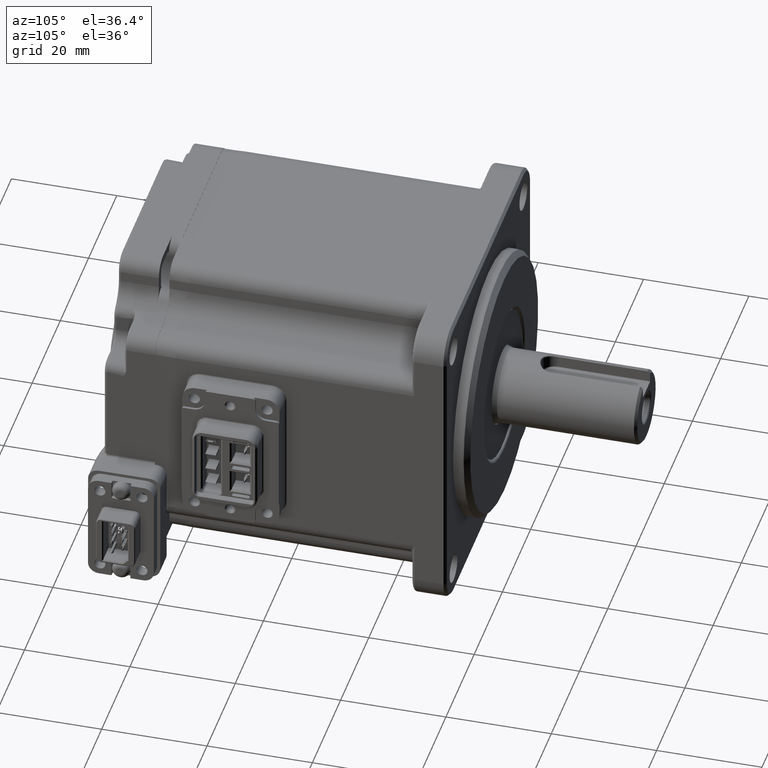
[diagram: clean part render]
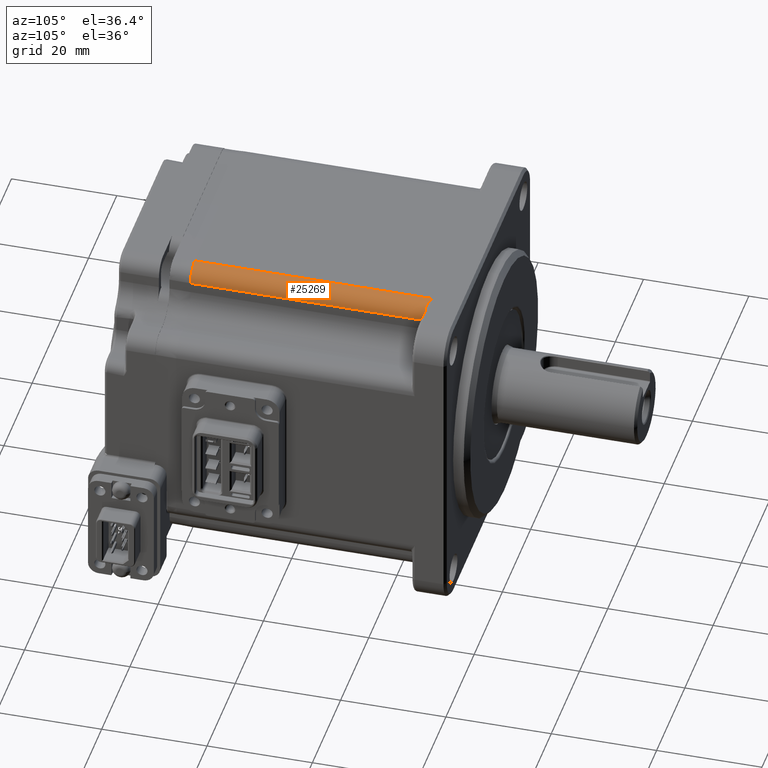
[diagram: same view with one face highlighted and labeled with its STEP entity id]
A machine part, auxiliary view. The second image highlights one B-rep face of the part: STEP entity #25269.
In plain terms, the highlighted cylindrical surface (edge-blend (fillet) strip) has radius 3 mm, axis along (-0, 1, -0).
Its self-contained STEP definition (entity closure, byte-faithful):
#1031 = AXIS2_PLACEMENT_3D ( 'NONE', #10527, #23548, #12647 ) ;
#1887 = LINE ( 'NONE', #19435, #25401 ) ;
#2039 = B_SPLINE_CURVE_WITH_KNOTS ( 'NONE', 3,
 ( #3037, #4738, #6856, #13925, #16039, #18045, #7276, #26395 ),
 .UNSPECIFIED., .F., .F.,
 ( 4, 2, 2, 4 ),
 ( 0.000000000000000000, 0.0005735661121465349685, 0.001147132224293069937, 0.002294264448586152017 ),
 .UNSPECIFIED. ) ;
#3037 = CARTESIAN_POINT ( 'NONE',  ( 18.95824174804891626, 5.200000000000001954, 29.27272727272727337 ) ) ;
#3210 = CARTESIAN_POINT ( 'NONE',  ( 16.99999999999997868, 6.000000000000000000, 30.00000000000000000 ) ) ;
#4129 = EDGE_CURVE ( 'NONE', #7677, #6767, #23454, .T. ) ;
#4738 = CARTESIAN_POINT ( 'NONE',  ( 18.81105337855161608, 5.199999999999998401, 29.39954865311708687 ) ) ;
#5053 = VERTEX_POINT ( 'NONE', #24340 ) ;
#6165 = ORIENTED_EDGE ( 'NONE', *, *, #26371, .T. ) ;
#6767 = VERTEX_POINT ( 'NONE', #13367 ) ;
#6856 = CARTESIAN_POINT ( 'NONE',  ( 18.65709914489520926, 5.234311899504082710, 29.50773729789409217 ) ) ;
#7276 = CARTESIAN_POINT ( 'NONE',  ( 17.33623105009467835, 5.817897131654720333, 30.00000000000000000 ) ) ;
#7677 = VERTEX_POINT ( 'NONE', #12406 ) ;
#8511 = LINE ( 'NONE', #19530, #13787 ) ;
#8609 = EDGE_LOOP ( 'NONE', ( #9058, #6165, #22020, #27765, #19655 ) ) ;
#9058 = ORIENTED_EDGE ( 'NONE', *, *, #22910, .T. ) ;
#10527 = CARTESIAN_POINT ( 'NONE',  ( 17.00000000000000000, 5.200000000000002842, 27.00000000000000355 ) ) ;
#10956 = VERTEX_POINT ( 'NONE', #20638 ) ;
#11071 = AXIS2_PLACEMENT_3D ( 'NONE', #11936, #22438, #26811 ) ;
#11517 = CYLINDRICAL_SURFACE ( 'NONE', #11071, 2.999999999999999112 ) ;
#11936 = CARTESIAN_POINT ( 'NONE',  ( 17.00000000000000000, -39.20000000000000284, 27.00000000000000355 ) ) ;
#12406 = CARTESIAN_POINT ( 'NONE',  ( 20.00000000000000000, -39.20000000000000284, 26.99999999999997868 ) ) ;
#12647 = DIRECTION ( 'NONE',  ( 0.000000000000000000, 0.000000000000000000, -1.000000000000000000 ) ) ;
#13239 = CARTESIAN_POINT ( 'NONE',  ( 17.00000000000000000, -39.20000000000000284, 27.00000000000000355 ) ) ;
#13367 = CARTESIAN_POINT ( 'NONE',  ( 16.99999999999997868, -39.20000000000000284, 30.00000000000000355 ) ) ;
#13787 = VECTOR ( 'NONE', #21378, 1000.000000000000000 ) ;
#13925 = CARTESIAN_POINT ( 'NONE',  ( 18.33402490939459994, 5.337545474390672950, 29.69352955661828020 ) ) ;
#15378 = DIRECTION ( 'NONE',  ( 0.000000000000000000, -1.000000000000000000, 0.000000000000000000 ) ) ;
#16039 = CARTESIAN_POINT ( 'NONE',  ( 18.17147177572114458, 5.405131890372809167, 29.76736025077898162 ) ) ;
#18045 = CARTESIAN_POINT ( 'NONE',  ( 17.67687598698844198, 5.632348040865074346, 29.94352754596412325 ) ) ;
#19435 = CARTESIAN_POINT ( 'NONE',  ( 20.00000000000000000, -39.20000000000000284, 26.99999999999997868 ) ) ;
#19530 = CARTESIAN_POINT ( 'NONE',  ( 16.99999999999997868, -39.20000000000000284, 30.00000000000000355 ) ) ;
#19655 = ORIENTED_EDGE ( 'NONE', *, *, #27873, .T. ) ;
#20638 = CARTESIAN_POINT ( 'NONE',  ( 20.00000000000000000, 5.199999999999989519, 26.99999999999997868 ) ) ;
#20822 = VERTEX_POINT ( 'NONE', #3210 ) ;
#21378 = DIRECTION ( 'NONE',  ( -0.000000000000000000, 1.000000000000000000, -0.000000000000000000 ) ) ;
#22020 = ORIENTED_EDGE ( 'NONE', *, *, #22236, .F. ) ;
#22104 = AXIS2_PLACEMENT_3D ( 'NONE', #13239, #15378, #26004 ) ;
#22236 = EDGE_CURVE ( 'NONE', #6767, #20822, #8511, .T. ) ;
#22438 = DIRECTION ( 'NONE',  ( -0.000000000000000000, 1.000000000000000000, -0.000000000000000000 ) ) ;
#22713 = FACE_OUTER_BOUND ( 'NONE', #8609, .T. ) ;
#22910 = EDGE_CURVE ( 'NONE', #10956, #5053, #24069, .T. ) ;
#23454 = CIRCLE ( 'NONE', #22104, 2.999999999999999112 ) ;
#23548 = DIRECTION ( 'NONE',  ( 0.000000000000000000, -1.000000000000000000, 0.000000000000000000 ) ) ;
#24069 = CIRCLE ( 'NONE', #1031, 2.999999999999999112 ) ;
#24340 = CARTESIAN_POINT ( 'NONE',  ( 18.95824174804891626, 5.200000000000001954, 29.27272727272727337 ) ) ;
#25269 = ADVANCED_FACE ( 'NONE', ( #22713 ), #11517, .T. ) ;
#25401 = VECTOR ( 'NONE', #25958, 1000.000000000000000 ) ;
#25958 = DIRECTION ( 'NONE',  ( -0.000000000000000000, 1.000000000000000000, -0.000000000000000000 ) ) ;
#26004 = DIRECTION ( 'NONE',  ( 0.000000000000000000, 0.000000000000000000, 1.000000000000000000 ) ) ;
#26371 = EDGE_CURVE ( 'NONE', #5053, #20822, #2039, .T. ) ;
#26395 = CARTESIAN_POINT ( 'NONE',  ( 16.99999999999997868, 6.000000000000000000, 30.00000000000000000 ) ) ;
#26811 = DIRECTION ( 'NONE',  ( 0.000000000000000000, 0.000000000000000000, 1.000000000000000000 ) ) ;
#27765 = ORIENTED_EDGE ( 'NONE', *, *, #4129, .F. ) ;
#27873 = EDGE_CURVE ( 'NONE', #7677, #10956, #1887, .T. ) ;